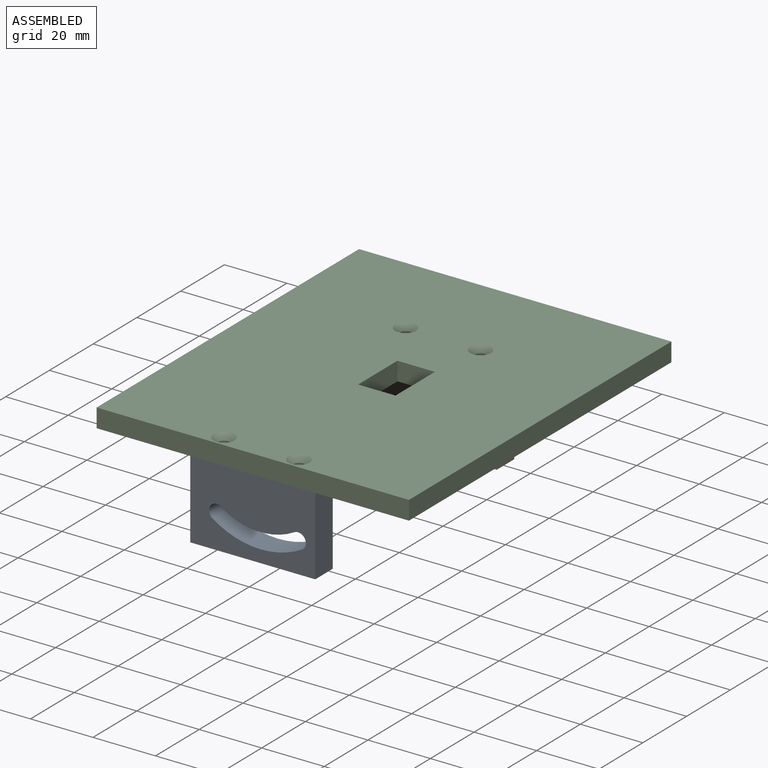
[diagram: assembled view]
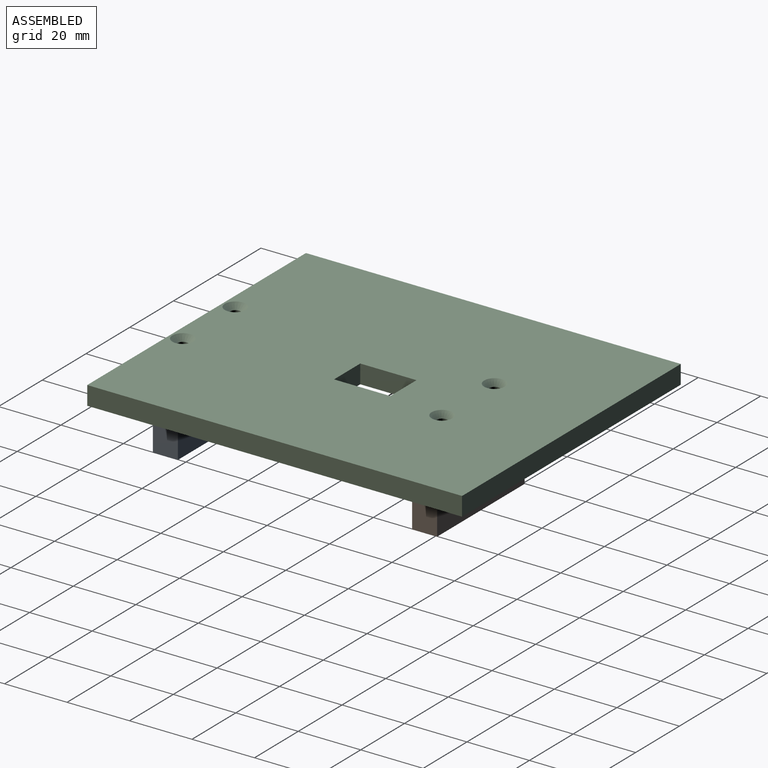
[diagram: assembled view, second angle]
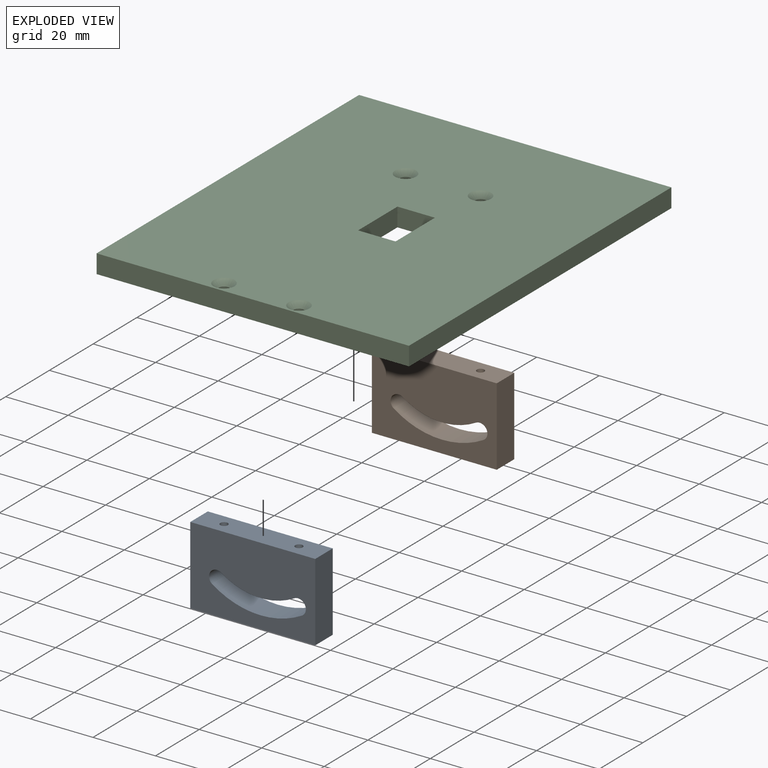
[diagram: exploded view]
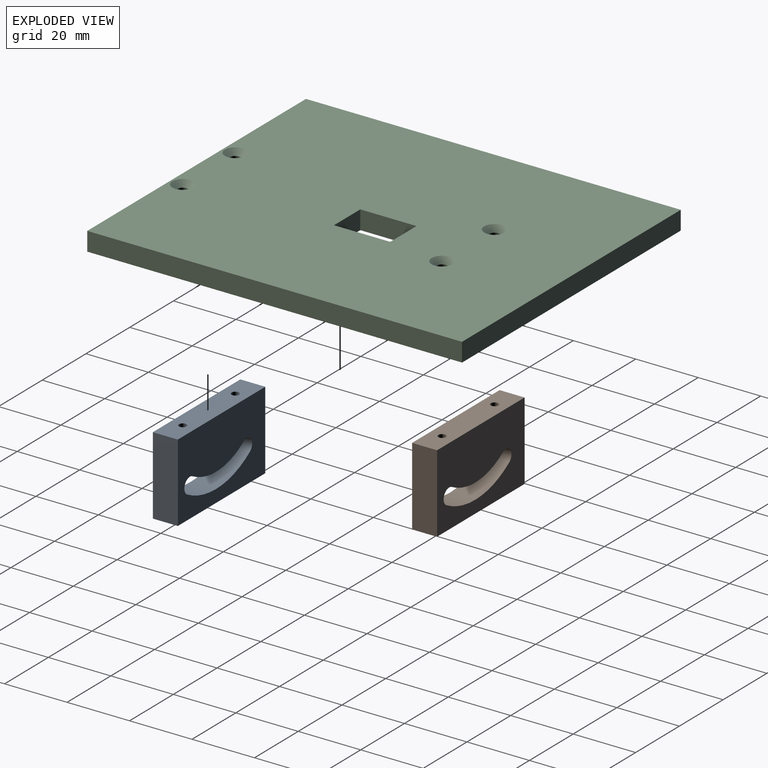
[diagram: exploded view, second angle]
ASSEMBLY  parts=3 mates=2
PART A: 14 faces, bbox 40x8x25 mm
  f0: cylinder r=2.5mm len=8mm, axis (0,1,0), area 62.4mm2, adj f1,f7,f8,f9
  f1: cylinder r=27mm len=28.91mm, axis (0,1,0), area 244.4mm2, adj f0,f2,f8,f9
  f2: cylinder r=2.5mm len=8mm, axis (0,1,0), area 60.7mm2, adj f1,f7,f8,f9
  f3: plane 40x8mm, normal (0,0,-1), area 320mm2, adj f4,f6,f8,f9
  f4: plane 25x8mm, normal (1,0,0), area 200mm2, adj f3,f5,f8,f9
  f5: plane 40x8mm, normal (0,0,1), area 311mm2, adj f4,f6,f8,f9,f10,f12
  f6: plane 25x8mm, normal (-1,0,0), area 200mm2, adj f3,f5,f8,f9
  f7: cylinder r=22mm len=23.35mm, axis (0,1,0), area 197.1mm2, adj f0,f2,f8,f9
  f8: plane 40x25mm, normal (0,-1,0), area 843.4mm2, adj f0,f1,f2,f3,f4,f5,f6,f7
  f9: plane 40x25mm, normal (0,1,0), area 843.4mm2, adj f0,f1,f2,f3,f4,f5,f6,f7
  f10: cylinder r=1.2mm len=7.8mm, axis (0,0,1), area 58.8mm2, adj f5,f11
  f11: cone r=0mm half-angle=59deg, axis (0,0,1), area 5.3mm2, adj f10
  f12: cylinder r=1.2mm len=7.8mm, axis (0,0,1), area 58.8mm2, adj f5,f13
  f13: cone r=0mm half-angle=59deg, axis (0,0,1), area 5.3mm2, adj f12
PART B: same geometry as A
PART C: 18 faces, bbox 100x6x120 mm
  f0: plane 100x6mm, normal (0,0,-1), area 600mm2, adj f1,f6,f7,f8
  f1: plane 120x6mm, normal (1,0,0), area 720mm2, adj f0,f2,f7,f8
  f2: plane 100x6mm, normal (0,0,1), area 600mm2, adj f1,f6,f7,f8
  f3: plane 18x6mm, normal (0,0,-1), area 90mm2, adj f5,f7,f8,f9
  f4: plane 18x6mm, normal (0,0,1), area 90mm2, adj f5,f7,f8,f9
  f5: plane 18x6mm, normal (1,0,0), area 108mm2, adj f3,f4,f7,f8
  f6: plane 120x6mm, normal (-1,0,0), area 720mm2, adj f0,f2,f7,f8
  f7: plane 120x100mm, normal (0,-1,0), area 11642.1mm2, adj f0,f1,f2,f3,f4,f5,f6,f9
  f8: plane 120x100mm, normal (0,1,0), area 11641.8mm2, adj f0,f1,f2,f3,f4,f5,f6,f9
  f9: plane 18x6mm, normal (-0.71,0.71,0), area 152.7mm2, adj f3,f4,f7,f8
  f10: cylinder r=1.65mm len=4.29mm, axis (0,-1,0), area 44.5mm2, adj f8,f11
  f11: cone r=1.65mm half-angle=45deg, axis (0,-1,0), area 38.1mm2, adj f7,f10
  f12: cylinder r=1.65mm len=4.29mm, axis (0,-1,0), area 44.5mm2, adj f8,f13
  f13: cone r=1.65mm half-angle=45deg, axis (0,-1,0), area 38.1mm2, adj f7,f12
  f14: cylinder r=1.65mm len=4.29mm, axis (0,-1,0), area 44.5mm2, adj f8,f15
  f15: cone r=1.65mm half-angle=45deg, axis (0,-1,0), area 38.1mm2, adj f7,f14
  f16: cylinder r=1.65mm len=4.29mm, axis (0,-1,0), area 44.5mm2, adj f8,f17
  f17: cone r=1.65mm half-angle=45deg, axis (0,-1,0), area 38.1mm2, adj f7,f16
PLACE A at identity
PLACE B t=(0,83,0)mm
PLACE C rot(axis=(-1,0,0),90deg) t=(-2.06,56,17.11)mm
MATE fastened C.f16 <-> A.f10  axis (0,0,-1) through (-14.06,0,14.11)mm
MATE fastened B.f10 <-> C.f10  axis (0,0,1) through (-14.06,83,14.11)mm
